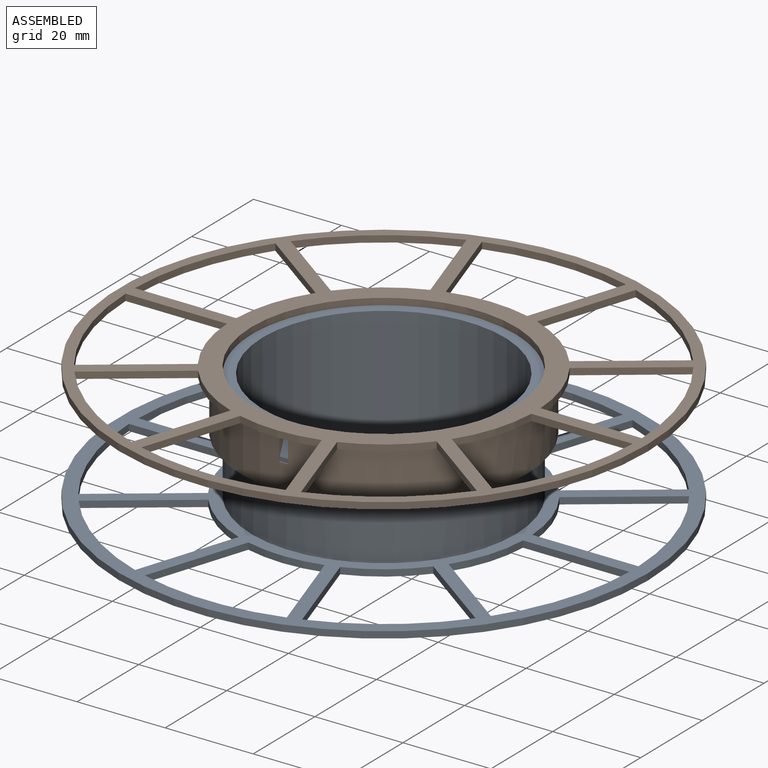
[diagram: assembled view]
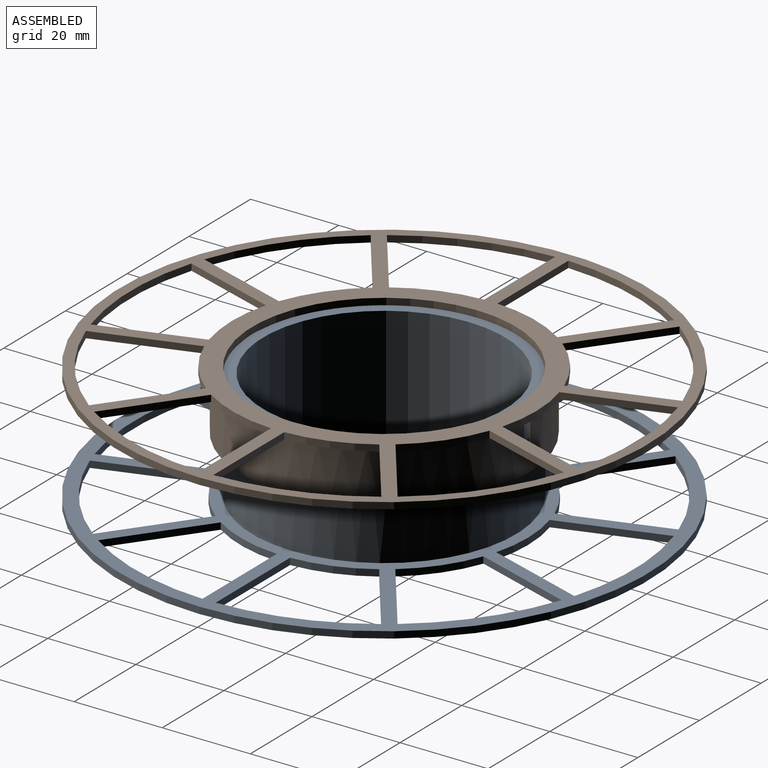
[diagram: assembled view, second angle]
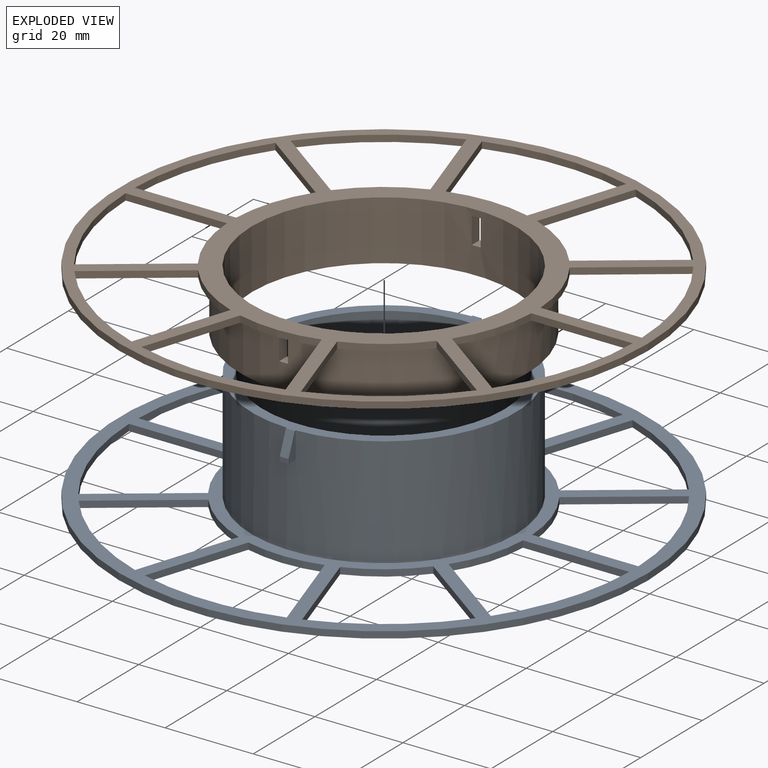
[diagram: exploded view]
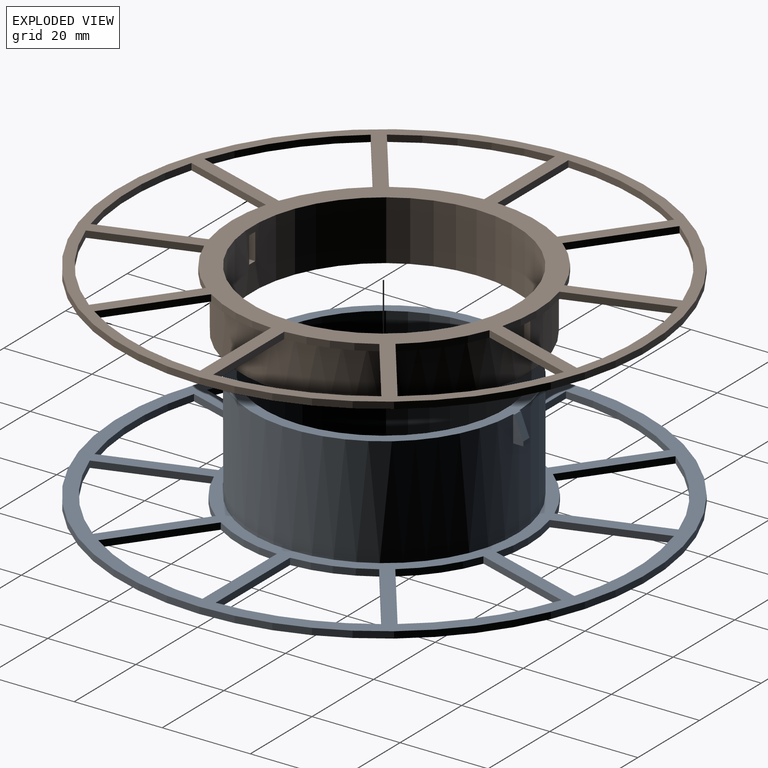
[diagram: exploded view, second angle]
ASSEMBLY  parts=2 mates=2
PART A: 56 faces, bbox 120x120x26.5 mm
  f0: plane 120x120mm, normal (0,0,1), area 2419.6mm2, adj f2,f3,f16,f17,f18,f19,f20,f21
  f1: plane 120x120mm, normal (0,0,-1), area 2871.2mm2, adj f2,f5,f16,f17,f18,f19,f20,f21
  f2: cylinder r=60mm len=120mm, axis (0,0,-1), area 565.5mm2, adj f0,f1
  f3: cylinder r=30mm len=60mm, axis (0,0,-1), area 4688.4mm2, adj f0,f4,f7,f8,f9,f11,f12,f13
  f4: plane 60.6x60mm, normal (0,0,1), area 452.8mm2, adj f3,f5,f7,f8,f11,f12,f14,f15
  f5: cylinder r=27.5mm len=55mm, axis (0,0,1), area 4578.9mm2, adj f1,f4
  f6: plane 2x1mm, normal (0,-1,0), area 2mm2, adj f7,f8,f9,f14
  f7: plane 6x2.32mm, normal (1,0,0), area 8.9mm2, adj f3,f4,f6,f9,f14
  f8: plane 6x2.32mm, normal (-1,0,0), area 8.9mm2, adj f3,f4,f6,f9,f14
  f9: plane 2.32x2mm, normal (0,0,-1), area 4.6mm2, adj f3,f6,f7,f8
  f10: plane 2x1mm, normal (0,1,0), area 2mm2, adj f11,f12,f13,f15
  f11: plane 6x2.32mm, normal (1,0,0), area 8.9mm2, adj f3,f4,f10,f13,f15
  f12: plane 6x2.32mm, normal (-1,0,0), area 8.9mm2, adj f3,f4,f10,f13,f15
  f13: plane 2.32x2mm, normal (0,0,-1), area 4.6mm2, adj f3,f10,f11,f12
  f14: plane 5x2mm, normal (0,-0.93,0.37), area 10.8mm2, adj f4,f6,f7,f8
  f15: plane 5x2mm, normal (0,0.93,0.37), area 10.8mm2, adj f4,f10,f11,f12
  f16: cylinder r=56.83mm len=30.68mm, axis (0,0,1), area 49.1mm2, adj f0,f1,f17,f19
  f17: plane 24.14x1.5mm, normal (0,1,0), area 36.2mm2, adj f0,f1,f16,f18
  f18: cylinder r=32.7mm len=16.49mm, axis (0,0,1), area 26.3mm2, adj f0,f1,f17,f19
  f19: plane 19.53x14.19mm, normal (-0.59,-0.81,0), area 36.2mm2, adj f0,f1,f16,f18
  f20: cylinder r=56.83mm len=26.1mm, axis (0,0,1), area 49.1mm2, adj f0,f1,f21,f23
  f21: plane 19.53x14.19mm, normal (0.59,0.81,0), area 36.2mm2, adj f0,f1,f20,f22
  f22: cylinder r=32.7mm len=14.03mm, axis (0,0,1), area 26.3mm2, adj f0,f1,f21,f23
  f23: plane 22.96x7.46mm, normal (-0.95,-0.31,0), area 36.2mm2, adj f0,f1,f20,f22
  f24: cylinder r=56.83mm len=32.26mm, axis (0,0,1), area 49.1mm2, adj f0,f1,f25,f27
  f25: plane 22.96x7.46mm, normal (-0.95,-0.31,0), area 36.2mm2, adj f0,f1,f24,f26
  f26: cylinder r=32.7mm len=17.34mm, axis (0,0,1), area 26.3mm2, adj f0,f1,f25,f27
  f27: plane 22.96x7.46mm, normal (0.95,-0.31,0), area 36.2mm2, adj f0,f1,f24,f26
  f28: cylinder r=56.83mm len=26.1mm, axis (0,0,1), area 49.1mm2, adj f0,f1,f29,f31
  f29: plane 19.53x14.19mm, normal (-0.59,-0.81,0), area 36.2mm2, adj f0,f1,f28,f30
  f30: cylinder r=32.7mm len=14.03mm, axis (0,0,1), area 26.3mm2, adj f0,f1,f29,f31
  f31: plane 22.96x7.46mm, normal (0.95,0.31,0), area 36.2mm2, adj f0,f1,f28,f30
  f32: cylinder r=56.83mm len=30.68mm, axis (0,0,1), area 49.1mm2, adj f0,f1,f33,f35
  f33: plane 19.53x14.19mm, normal (-0.59,0.81,0), area 36.2mm2, adj f0,f1,f32,f34
  f34: cylinder r=32.7mm len=16.49mm, axis (0,0,1), area 26.3mm2, adj f0,f1,f33,f35
  f35: plane 24.14x1.5mm, normal (0,-1,0), area 36.2mm2, adj f0,f1,f32,f34
  f36: cylinder r=56.83mm len=26.1mm, axis (0,0,1), area 49.1mm2, adj f0,f1,f37,f39
  f37: plane 22.96x7.46mm, normal (-0.95,0.31,0), area 36.2mm2, adj f0,f1,f36,f38
  f38: cylinder r=32.7mm len=14.03mm, axis (0,0,1), area 26.3mm2, adj f0,f1,f37,f39
  f39: plane 19.53x14.19mm, normal (0.59,-0.81,0), area 36.2mm2, adj f0,f1,f36,f38
  f40: cylinder r=56.83mm len=26.1mm, axis (0,0,1), area 49.1mm2, adj f0,f1,f41,f43
  f41: plane 22.96x7.46mm, normal (0.95,-0.31,0), area 36.2mm2, adj f0,f1,f40,f42
  f42: cylinder r=32.7mm len=14.03mm, axis (0,0,1), area 26.3mm2, adj f0,f1,f41,f43
  f43: plane 19.53x14.19mm, normal (-0.59,0.81,0), area 36.2mm2, adj f0,f1,f40,f42
  f44: cylinder r=56.83mm len=32.26mm, axis (0,0,1), area 49.1mm2, adj f0,f1,f45,f47
  f45: plane 22.96x7.46mm, normal (0.95,0.31,0), area 36.2mm2, adj f0,f1,f44,f46
  f46: cylinder r=32.7mm len=17.34mm, axis (0,0,1), area 26.3mm2, adj f0,f1,f45,f47
  f47: plane 22.96x7.46mm, normal (-0.95,0.31,0), area 36.2mm2, adj f0,f1,f44,f46
  f48: cylinder r=56.83mm len=30.68mm, axis (0,0,1), area 49.1mm2, adj f0,f1,f49,f51
  f49: plane 19.53x14.19mm, normal (0.59,-0.81,0), area 36.2mm2, adj f0,f1,f48,f50
  f50: cylinder r=32.7mm len=16.49mm, axis (0,0,1), area 26.3mm2, adj f0,f1,f49,f51
  f51: plane 24.14x1.5mm, normal (0,1,0), area 36.2mm2, adj f0,f1,f48,f50
  f52: cylinder r=56.83mm len=30.68mm, axis (0,0,1), area 49.1mm2, adj f0,f1,f53,f55
  f53: plane 24.14x1.5mm, normal (0,-1,0), area 36.2mm2, adj f0,f1,f52,f54
  f54: cylinder r=32.7mm len=16.49mm, axis (0,0,1), area 26.3mm2, adj f0,f1,f53,f55
  f55: plane 19.53x14.19mm, normal (0.59,0.81,0), area 36.2mm2, adj f0,f1,f52,f54
PART B: 52 faces, bbox 120x120x13.5 mm
  f0: plane 120x120mm, normal (0,0,1), area 2026.4mm2, adj f2,f3,f4,f6,f8,f9,f11,f12
  f1: plane 120x120mm, normal (0,0,-1), area 2507.3mm2, adj f2,f3,f12,f13,f14,f15,f16,f17
  f2: cylinder r=30mm len=60mm, axis (0,0,-1), area 2520.7mm2, adj f0,f1,f5,f6,f7,f8,f9,f10
  f3: cylinder r=60mm len=120mm, axis (0,0,-1), area 565.5mm2, adj f0,f1
  f4: cylinder r=32.5mm len=65mm, axis (0,0,-1), area 2426.4mm2, adj f0,f5,f6,f7,f8,f9,f10,f11
  f5: plane 65x65mm, normal (0,0,1), area 490.9mm2, adj f2,f4
  f6: plane 6x2.5mm, normal (1,0,0), area 15mm2, adj f0,f2,f4,f7
  f7: plane 2.52x2mm, normal (0,0,-1), area 5mm2, adj f2,f4,f6,f8
  f8: plane 6x2.5mm, normal (-1,0,0), area 15mm2, adj f0,f2,f4,f7
  f9: plane 6x2.5mm, normal (-1,0,0), area 15mm2, adj f0,f2,f4,f10
  f10: plane 2.52x2mm, normal (0,0,-1), area 5mm2, adj f2,f4,f9,f11
  f11: plane 6x2.5mm, normal (1,0,0), area 15mm2, adj f0,f2,f4,f10
  f12: cylinder r=57.61mm len=31.13mm, axis (0,0,1), area 49.8mm2, adj f0,f1,f13,f15
  f13: plane 23.03x1.5mm, normal (0,1,0), area 34.5mm2, adj f0,f1,f12,f14
  f14: cylinder r=34.59mm len=17.6mm, axis (0,0,1), area 28.1mm2, adj f0,f1,f13,f15
  f15: plane 18.63x13.53mm, normal (-0.59,-0.81,0), area 34.5mm2, adj f0,f1,f12,f14
  f16: cylinder r=57.61mm len=26.48mm, axis (0,0,1), area 49.8mm2, adj f0,f1,f17,f19
  f17: plane 18.63x13.53mm, normal (0.59,0.81,0), area 34.5mm2, adj f0,f1,f16,f18
  f18: cylinder r=34.59mm len=14.97mm, axis (0,0,1), area 28.1mm2, adj f0,f1,f17,f19
  f19: plane 21.9x7.12mm, normal (-0.95,-0.31,0), area 34.5mm2, adj f0,f1,f16,f18
  f20: cylinder r=57.61mm len=32.74mm, axis (0,0,1), area 49.8mm2, adj f0,f1,f21,f23
  f21: plane 21.9x7.12mm, normal (-0.95,-0.31,0), area 34.5mm2, adj f0,f1,f20,f22
  f22: cylinder r=34.59mm len=18.51mm, axis (0,0,1), area 28.1mm2, adj f0,f1,f21,f23
  f23: plane 21.9x7.12mm, normal (0.95,-0.31,0), area 34.5mm2, adj f0,f1,f20,f22
  f24: cylinder r=57.61mm len=26.48mm, axis (0,0,1), area 49.8mm2, adj f0,f1,f25,f27
  f25: plane 18.63x13.53mm, normal (-0.59,-0.81,0), area 34.5mm2, adj f0,f1,f24,f26
  f26: cylinder r=34.59mm len=14.97mm, axis (0,0,1), area 28.1mm2, adj f0,f1,f25,f27
  f27: plane 21.9x7.12mm, normal (0.95,0.31,0), area 34.5mm2, adj f0,f1,f24,f26
  f28: cylinder r=57.61mm len=31.13mm, axis (0,0,1), area 49.8mm2, adj f0,f1,f29,f31
  f29: plane 18.63x13.53mm, normal (-0.59,0.81,0), area 34.5mm2, adj f0,f1,f28,f30
  f30: cylinder r=34.59mm len=17.6mm, axis (0,0,1), area 28.1mm2, adj f0,f1,f29,f31
  f31: plane 23.03x1.5mm, normal (0,-1,0), area 34.5mm2, adj f0,f1,f28,f30
  f32: cylinder r=57.61mm len=26.48mm, axis (0,0,1), area 49.8mm2, adj f0,f1,f33,f35
  f33: plane 21.9x7.12mm, normal (-0.95,0.31,0), area 34.5mm2, adj f0,f1,f32,f34
  f34: cylinder r=34.59mm len=14.97mm, axis (0,0,1), area 28.1mm2, adj f0,f1,f33,f35
  f35: plane 18.63x13.53mm, normal (0.59,-0.81,0), area 34.5mm2, adj f0,f1,f32,f34
  f36: cylinder r=57.61mm len=26.48mm, axis (0,0,1), area 49.8mm2, adj f0,f1,f37,f39
  f37: plane 21.9x7.12mm, normal (0.95,-0.31,0), area 34.5mm2, adj f0,f1,f36,f38
  f38: cylinder r=34.59mm len=14.97mm, axis (0,0,1), area 28.1mm2, adj f0,f1,f37,f39
  f39: plane 18.63x13.53mm, normal (-0.59,0.81,0), area 34.5mm2, adj f0,f1,f36,f38
  f40: cylinder r=57.61mm len=32.74mm, axis (0,0,1), area 49.8mm2, adj f0,f1,f41,f43
  f41: plane 21.9x7.12mm, normal (0.95,0.31,0), area 34.5mm2, adj f0,f1,f40,f42
  f42: cylinder r=34.59mm len=18.51mm, axis (0,0,1), area 28.1mm2, adj f0,f1,f41,f43
  f43: plane 21.9x7.12mm, normal (-0.95,0.31,0), area 34.5mm2, adj f0,f1,f40,f42
  f44: cylinder r=57.61mm len=31.13mm, axis (0,0,1), area 49.8mm2, adj f0,f1,f45,f47
  f45: plane 18.63x13.53mm, normal (0.59,-0.81,0), area 34.5mm2, adj f0,f1,f44,f46
  f46: cylinder r=34.59mm len=17.6mm, axis (0,0,1), area 28.1mm2, adj f0,f1,f45,f47
  f47: plane 23.03x1.5mm, normal (0,1,0), area 34.5mm2, adj f0,f1,f44,f46
  f48: cylinder r=57.61mm len=31.13mm, axis (0,0,1), area 49.8mm2, adj f0,f1,f49,f51
  f49: plane 23.03x1.5mm, normal (0,-1,0), area 34.5mm2, adj f0,f1,f48,f50
  f50: cylinder r=34.59mm len=17.6mm, axis (0,0,1), area 28.1mm2, adj f0,f1,f49,f51
  f51: plane 18.63x13.53mm, normal (0.59,0.81,0), area 34.5mm2, adj f0,f1,f48,f50
PLACE A t=(-0.43,0.09,-19.26)mm
PLACE B rot(axis=(1,0,0),180deg) t=(-150.43,0.09,8.74)mm
MATE planar B.f7 <-> A.f9  axis (0,0,1) through (-0.43,-31.16,1.24)mm
MATE slider B.f2 <-> A.f2  axis (0,0,1) through (-0.43,0.09,1.99)mm
